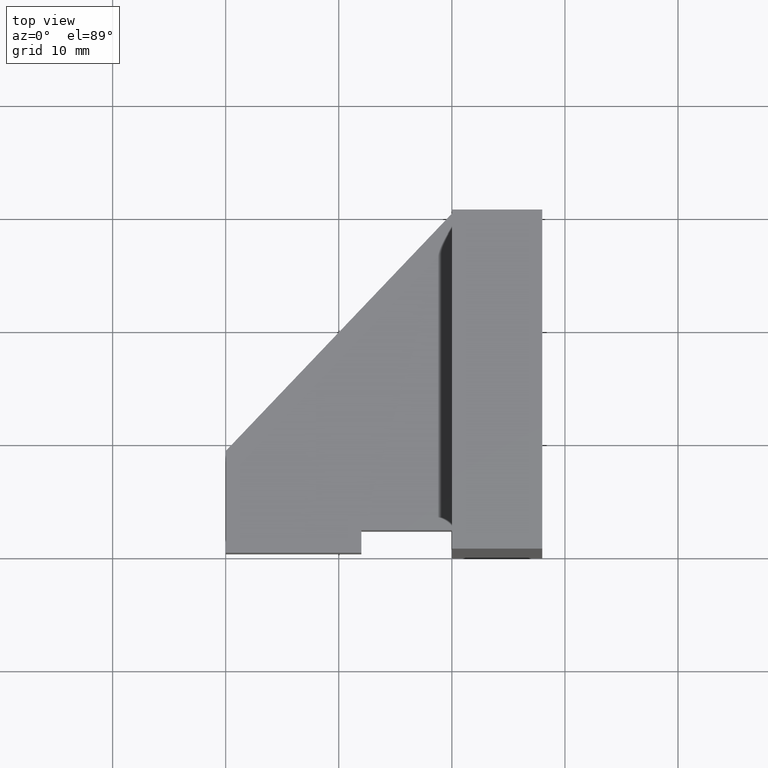
[diagram: clean part render]
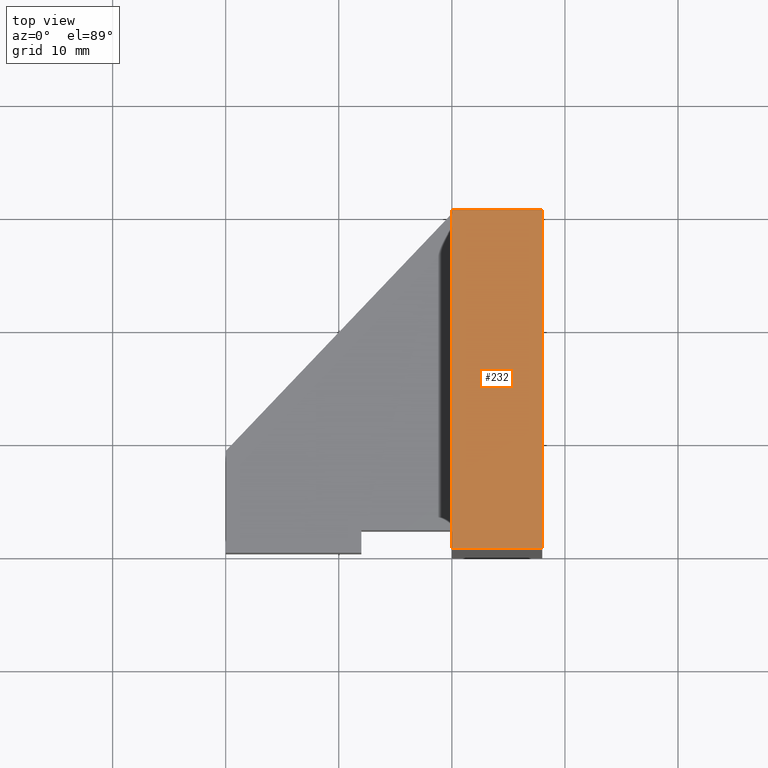
[diagram: same view with one face highlighted and labeled with its STEP entity id]
A machine part, top view. The second image highlights one B-rep face of the part: STEP entity #232.
In plain terms, the highlighted planar face has unit normal (0, -0, 1).
Its self-contained STEP definition (entity closure, byte-faithful):
#18=FACE_OUTER_BOUND('',#31,.T.);
#31=EDGE_LOOP('',(#164,#165,#166,#167));
#49=LINE('',#355,#80);
#51=LINE('',#360,#82);
#52=LINE('',#361,#83);
#53=LINE('',#362,#84);
#80=VECTOR('',#290,10.);
#82=VECTOR('',#294,10.);
#83=VECTOR('',#295,10.);
#84=VECTOR('',#296,10.);
#111=VERTEX_POINT('',#352);
#112=VERTEX_POINT('',#354);
#113=VERTEX_POINT('',#358);
#114=VERTEX_POINT('',#359);
#131=EDGE_CURVE('',#112,#111,#49,.T.);
#133=EDGE_CURVE('',#113,#114,#51,.T.);
#134=EDGE_CURVE('',#112,#114,#52,.T.);
#135=EDGE_CURVE('',#111,#113,#53,.T.);
#164=ORIENTED_EDGE('',*,*,#133,.T.);
#165=ORIENTED_EDGE('',*,*,#134,.F.);
#166=ORIENTED_EDGE('',*,*,#131,.T.);
#167=ORIENTED_EDGE('',*,*,#135,.T.);
#219=PLANE('',#268);
#232=ADVANCED_FACE('',(#18),#219,.T.);
#268=AXIS2_PLACEMENT_3D('',#357,#292,#293);
#290=DIRECTION('',(3.96508223080413E-16,-1.,-1.48029736616688E-16));
#292=DIRECTION('center_axis',(5.86950078289443E-32,-1.48029736616688E-16,
1.));
#293=DIRECTION('ref_axis',(1.,0.,-5.86950078289443E-32));
#294=DIRECTION('',(-3.96508223080413E-16,1.,1.48029736616688E-16));
#295=DIRECTION('',(1.,3.96508223080413E-16,0.));
#296=DIRECTION('',(1.,3.96508223080413E-16,0.));
#352=CARTESIAN_POINT('',(3.01346249541114E-15,8.32667268468867E-16,25.));
#354=CARTESIAN_POINT('',(-8.88178419700125E-15,30.,25.));
#355=CARTESIAN_POINT('',(-8.88178419700125E-15,30.,25.));
#357=CARTESIAN_POINT('Origin',(3.01346249541114E-15,8.32667268468867E-16,
25.));
#358=CARTESIAN_POINT('',(8.,4.00473305311217E-15,25.));
#359=CARTESIAN_POINT('',(7.99999999999999,30.,25.));
#360=CARTESIAN_POINT('',(7.99999999999999,30.,25.));
#361=CARTESIAN_POINT('',(-8.88178419700125E-15,30.,25.));
#362=CARTESIAN_POINT('',(3.01346249541114E-15,8.32667268468867E-16,25.));